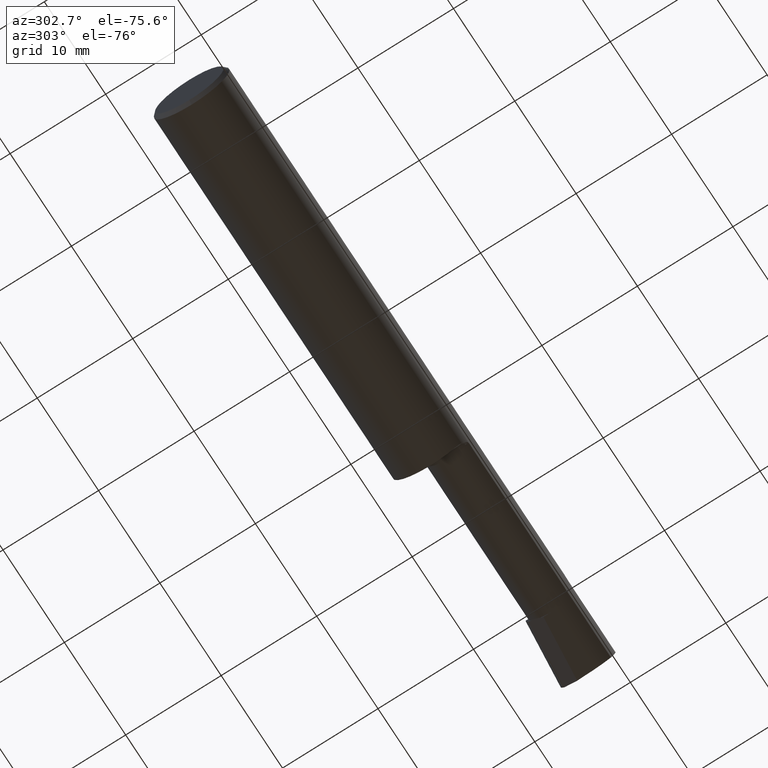
[diagram: clean part render]
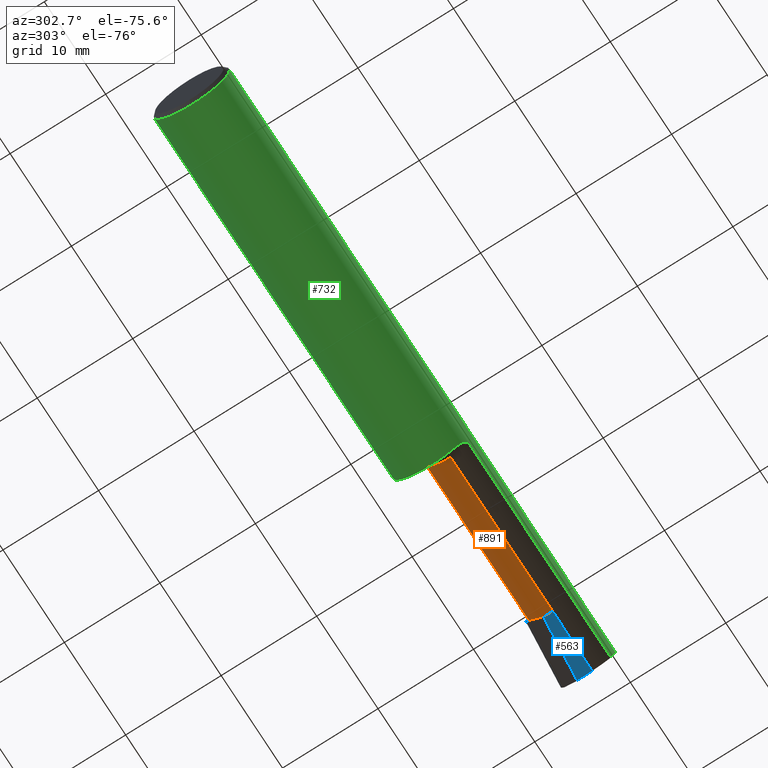
[diagram: same view with three faces highlighted in distinct colors, each labeled with its STEP entity id]
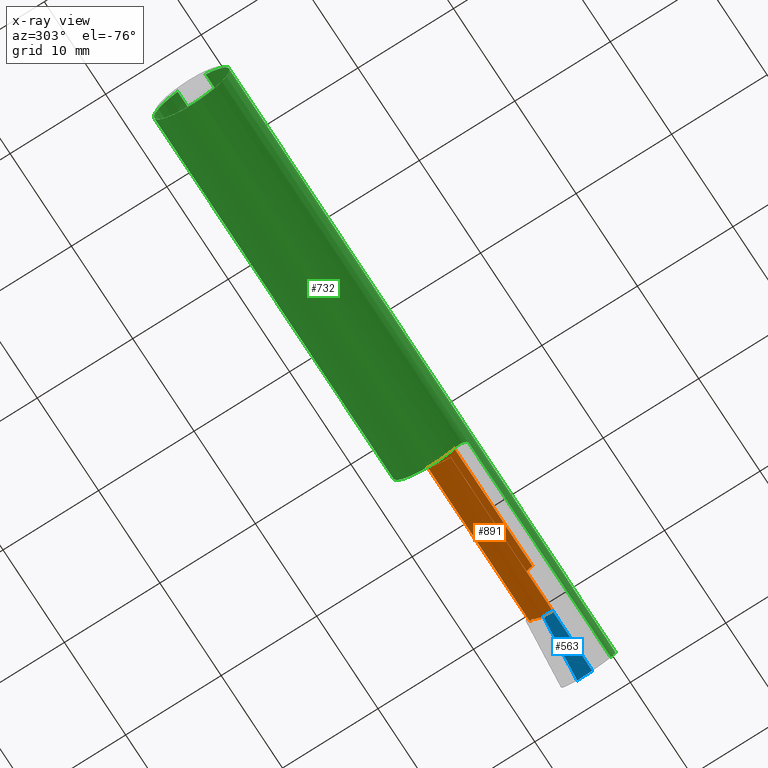
[diagram: x-ray of the same camera — body ghosted, the three highlighted faces saturated]
A machine part, auxiliary view with three faces highlighted in distinct colors.
The next image is the same camera in x-ray (body ghosted, the three faces saturated) — at least one of them is partly hidden behind the body in this view.
Their STEP definitions:

[orange] entity #891 — the highlighted cylindrical surface (edge-blend (fillet) strip) has radius 2.54 mm, axis along (-1, -0, -0).
#2 = DIRECTION ( 'NONE',  ( 0.000000000000000000, 0.000000000000000000, 1.000000000000000000 ) ) ;
#7 = CARTESIAN_POINT ( 'NONE',  ( 39.37000000000000455, -1.678939999999999433, 2.540000000000000036 ) ) ;
#20 = CARTESIAN_POINT ( 'NONE',  ( 56.52208028681336316, 0.5329470779028453453, -1.248661505215251433 ) ) ;
#39 = CIRCLE ( 'NONE', #1111, 2.540000000000000036 ) ;
#44 = ORIENTED_EDGE ( 'NONE', *, *, #56, .T. ) ;
#49 = AXIS2_PLACEMENT_3D ( 'NONE', #996, #1016, #135 ) ;
#51 = AXIS2_PLACEMENT_3D ( 'NONE', #581, #484, #2 ) ;
#56 = EDGE_CURVE ( 'NONE', #288, #638, #652, .T. ) ;
#76 = DIRECTION ( 'NONE',  ( -1.000000000000000000, -0.000000000000000000, -0.000000000000000000 ) ) ;
#83 = DIRECTION ( 'NONE',  ( 0.000000000000000000, 0.000000000000000000, 1.000000000000000000 ) ) ;
#94 = VERTEX_POINT ( 'NONE', #1227 ) ;
#115 = CARTESIAN_POINT ( 'NONE',  ( 39.37000000000000455, 0.8610600000000002696, -8.673617379884035472E-16 ) ) ;
#126 = EDGE_CURVE ( 'NONE', #742, #896, #39, .T. ) ;
#135 = DIRECTION ( 'NONE',  ( 0.000000000000000000, 0.000000000000000000, 1.000000000000000000 ) ) ;
#172 = CARTESIAN_POINT ( 'NONE',  ( 40.00499999999999545, -1.678939999999999433, 0.000000000000000000 ) ) ;
#178 = CARTESIAN_POINT ( 'NONE',  ( 56.64199999999999591, -1.678939999999999433, 0.000000000000000000 ) ) ;
#188 = ORIENTED_EDGE ( 'NONE', *, *, #126, .T. ) ;
#193 = ORIENTED_EDGE ( 'NONE', *, *, #407, .T. ) ;
#208 = CARTESIAN_POINT ( 'NONE',  ( 56.64199999999999591, -1.678939999999999433, -2.540000000000000480 ) ) ;
#233 = CARTESIAN_POINT ( 'NONE',  ( 56.52208028681336316, 0.5329470779028453453, -1.248661505215251433 ) ) ;
#267 = DIRECTION ( 'NONE',  ( 0.000000000000000000, 0.000000000000000000, -1.000000000000000000 ) ) ;
#275 = EDGE_CURVE ( 'NONE', #94, #451, #872, .T. ) ;
#288 = VERTEX_POINT ( 'NONE', #985 ) ;
#289 = CARTESIAN_POINT ( 'NONE',  ( 53.34253999999997831, -0.1922219241183829586, 2.540000000000000036 ) ) ;
#339 = EDGE_CURVE ( 'NONE', #1019, #465, #787, .T. ) ;
#345 =( BOUNDED_CURVE ( )  B_SPLINE_CURVE ( 3, ( #842, #1224, #460, #862 ),
 .UNSPECIFIED., .F., .F. ) 
 B_SPLINE_CURVE_WITH_KNOTS ( ( 4, 4 ),
 ( 4.479557257772968981, 4.982985725396998689 ),
 .UNSPECIFIED. ) 
 CURVE ( )  GEOMETRIC_REPRESENTATION_ITEM ( )  RATIONAL_B_SPLINE_CURVE ( ( 1.000000000000000000, 0.9789912600431243117, 0.9789912600431243117, 1.000000000000000000 ) ) 
 REPRESENTATION_ITEM ( '' )  );
#361 = CARTESIAN_POINT ( 'NONE',  ( 56.64199999999999591, -0.3352786765604210406, -2.155498607722260207 ) ) ;
#400 = ORIENTED_EDGE ( 'NONE', *, *, #827, .F. ) ;
#407 = EDGE_CURVE ( 'NONE', #896, #902, #699, .T. ) ;
#438 = CIRCLE ( 'NONE', #765, 2.540000000000000036 ) ;
#442 = EDGE_LOOP ( 'NONE', ( #188, #193, #483, #1216, #470, #44, #646, #982, #1010, #503, #400 ) ) ;
#444 =( BOUNDED_CURVE ( )  B_SPLINE_CURVE ( 3, ( #866, #1158, #289, #876 ),
 .UNSPECIFIED., .F., .T. ) 
 B_SPLINE_CURVE_WITH_KNOTS ( ( 4, 4 ),
 ( 4.713388980551348695, 6.283185307179586232 ),
 .UNSPECIFIED. ) 
 CURVE ( )  GEOMETRIC_REPRESENTATION_ITEM ( )  RATIONAL_B_SPLINE_CURVE ( ( 1.000000000000000000, 0.8049734974886378902, 0.8049734974886378902, 1.000000000000000000 ) ) 
 REPRESENTATION_ITEM ( '' )  );
#447 = CARTESIAN_POINT ( 'NONE',  ( 56.64199999999999591, 0.8610600000000002696, -8.673617379884035472E-16 ) ) ;
#451 = VERTEX_POINT ( 'NONE', #886 ) ;
#460 = CARTESIAN_POINT ( 'NONE',  ( 56.54978564970318189, 0.3211662971372793440, -1.623811351964774552 ) ) ;
#465 = VERTEX_POINT ( 'NONE', #1075 ) ;
#470 = ORIENTED_EDGE ( 'NONE', *, *, #1149, .F. ) ;
#483 = ORIENTED_EDGE ( 'NONE', *, *, #660, .T. ) ;
#484 = DIRECTION ( 'NONE',  ( -1.000000000000000000, -0.000000000000000000, -0.000000000000000000 ) ) ;
#488 = CARTESIAN_POINT ( 'NONE',  ( 56.64199999999999591, 0.5162690332466144394, -1.277754788820009146 ) ) ;
#494 = CARTESIAN_POINT ( 'NONE',  ( 56.60650789487561951, -0.3438671563499254846, -2.160828660988210803 ) ) ;
#503 = ORIENTED_EDGE ( 'NONE', *, *, #731, .F. ) ;
#522 = CARTESIAN_POINT ( 'NONE',  ( 56.64199999999999591, -0.3352786765604210406, -2.155498607722260207 ) ) ;
#524 = VECTOR ( 'NONE', #1069, 1000.000000000000000 ) ;
#568 = DIRECTION ( 'NONE',  ( -1.000000000000000000, -0.000000000000000000, -0.000000000000000000 ) ) ;
#581 = CARTESIAN_POINT ( 'NONE',  ( 56.64199999999999591, -1.678939999999999433, 0.000000000000000000 ) ) ;
#594 = CIRCLE ( 'NONE', #51, 2.540000000000000036 ) ;
#638 = VERTEX_POINT ( 'NONE', #1100 ) ;
#646 = ORIENTED_EDGE ( 'NONE', *, *, #792, .T. ) ;
#652 = CIRCLE ( 'NONE', #49, 2.540000000000000036 ) ;
#660 = EDGE_CURVE ( 'NONE', #902, #451, #438, .T. ) ;
#680 = CARTESIAN_POINT ( 'NONE',  ( 56.60650789487561951, -0.3438671563499254846, -2.160828660988210803 ) ) ;
#684 = VERTEX_POINT ( 'NONE', #447 ) ;
#687 = CARTESIAN_POINT ( 'NONE',  ( 39.37000000000000455, -1.678939999999999433, 0.000000000000000000 ) ) ;
#699 = LINE ( 'NONE', #781, #524 ) ;
#714 = DIRECTION ( 'NONE',  ( -1.000000000000000000, -0.000000000000000000, -0.000000000000000000 ) ) ;
#731 = EDGE_CURVE ( 'NONE', #1157, #1019, #345, .T. ) ;
#742 = VERTEX_POINT ( 'NONE', #361 ) ;
#765 = AXIS2_PLACEMENT_3D ( 'NONE', #172, #931, #267 ) ;
#781 = CARTESIAN_POINT ( 'NONE',  ( 39.37000000000000455, -1.678939999999999211, -2.540000000000000036 ) ) ;
#787 =( BOUNDED_CURVE ( )  B_SPLINE_CURVE ( 3, ( #20, #1160, #975, #488 ),
 .UNSPECIFIED., .F., .F. ) 
 B_SPLINE_CURVE_WITH_KNOTS ( ( 4, 4 ),
 ( 2.885266815324716294, 2.898469550304956677 ),
 .UNSPECIFIED. ) 
 CURVE ( )  GEOMETRIC_REPRESENTATION_ITEM ( )  RATIONAL_B_SPLINE_CURVE ( ( 1.000000000000000000, 0.9999854740351713511, 0.9999854740351713511, 1.000000000000000000 ) ) 
 REPRESENTATION_ITEM ( '' )  );
#792 = EDGE_CURVE ( 'NONE', #638, #684, #1062, .T. ) ;
#827 = EDGE_CURVE ( 'NONE', #742, #1157, #998, .T. ) ;
#842 = CARTESIAN_POINT ( 'NONE',  ( 56.60650789487561951, -0.3438671563499254846, -2.160828660988210803 ) ) ;
#862 = CARTESIAN_POINT ( 'NONE',  ( 56.52208028681336316, 0.5329470779028453453, -1.248661505215251433 ) ) ;
#866 = CARTESIAN_POINT ( 'NONE',  ( 55.88000000000000256, 0.8610587299996853572, 0.002539999999979711265 ) ) ;
#869 = CARTESIAN_POINT ( 'NONE',  ( 56.63026341365512906, -0.3381379660845326152, -2.157280987322181875 ) ) ;
#872 = LINE ( 'NONE', #7, #1195 ) ;
#876 = CARTESIAN_POINT ( 'NONE',  ( 53.34253999999998541, -1.678939999999999433, 2.540000000000000036 ) ) ;
#886 = CARTESIAN_POINT ( 'NONE',  ( 40.00499999999999545, -1.678939999999999433, 2.540000000000000036 ) ) ;
#891 = ADVANCED_FACE ( 'NONE', ( #967 ), #1000, .T. ) ;
#896 = VERTEX_POINT ( 'NONE', #208 ) ;
#900 = CARTESIAN_POINT ( 'NONE',  ( 40.00499999999999545, -1.678939999999999211, -2.540000000000000036 ) ) ;
#902 = VERTEX_POINT ( 'NONE', #900 ) ;
#903 = CARTESIAN_POINT ( 'NONE',  ( 56.61843269633379094, -0.3410007964591647012, -2.159057674088892487 ) ) ;
#931 = DIRECTION ( 'NONE',  ( 1.000000000000000000, 0.000000000000000000, 0.000000000000000000 ) ) ;
#936 = AXIS2_PLACEMENT_3D ( 'NONE', #687, #714, #1074 ) ;
#967 = FACE_OUTER_BOUND ( 'NONE', #442, .T. ) ;
#975 = CARTESIAN_POINT ( 'NONE',  ( 56.60306167935597443, 0.5218923600378164718, -1.268093797621264951 ) ) ;
#982 = ORIENTED_EDGE ( 'NONE', *, *, #1091, .T. ) ;
#985 = CARTESIAN_POINT ( 'NONE',  ( 55.88000000000000256, 0.8610587299996853572, 0.002539999999979711265 ) ) ;
#996 = CARTESIAN_POINT ( 'NONE',  ( 55.88000000000000256, -1.678939999999999433, 0.000000000000000000 ) ) ;
#998 =( BOUNDED_CURVE ( )  B_SPLINE_CURVE ( 3, ( #522, #869, #903, #494 ),
 .UNSPECIFIED., .F., .F. ) 
 B_SPLINE_CURVE_WITH_KNOTS ( ( 4, 4 ),
 ( 3.384715756874629555, 3.388695282948743781 ),
 .UNSPECIFIED. ) 
 CURVE ( )  GEOMETRIC_REPRESENTATION_ITEM ( )  RATIONAL_B_SPLINE_CURVE ( ( 1.000000000000000000, 0.9999986802814542219, 0.9999986802814542219, 1.000000000000000000 ) ) 
 REPRESENTATION_ITEM ( '' )  );
#1000 = CYLINDRICAL_SURFACE ( 'NONE', #936, 2.540000000000000036 ) ;
#1010 = ORIENTED_EDGE ( 'NONE', *, *, #339, .F. ) ;
#1016 = DIRECTION ( 'NONE',  ( -1.000000000000000000, -0.000000000000000000, -0.000000000000000000 ) ) ;
#1019 = VERTEX_POINT ( 'NONE', #233 ) ;
#1048 = VECTOR ( 'NONE', #1068, 1000.000000000000000 ) ;
#1062 = LINE ( 'NONE', #115, #1048 ) ;
#1068 = DIRECTION ( 'NONE',  ( 1.000000000000000000, 0.000000000000000000, 0.000000000000000000 ) ) ;
#1069 = DIRECTION ( 'NONE',  ( -1.000000000000000000, -0.000000000000000000, -0.000000000000000000 ) ) ;
#1074 = DIRECTION ( 'NONE',  ( 0.000000000000000000, 0.000000000000000000, 1.000000000000000000 ) ) ;
#1075 = CARTESIAN_POINT ( 'NONE',  ( 56.64199999999999591, 0.5162690332466144394, -1.277754788820009146 ) ) ;
#1091 = EDGE_CURVE ( 'NONE', #684, #465, #594, .T. ) ;
#1100 = CARTESIAN_POINT ( 'NONE',  ( 55.88000000000000256, 0.8610600000000002696, -8.673617379884035472E-16 ) ) ;
#1111 = AXIS2_PLACEMENT_3D ( 'NONE', #178, #76, #83 ) ;
#1149 = EDGE_CURVE ( 'NONE', #288, #94, #444, .T. ) ;
#1157 = VERTEX_POINT ( 'NONE', #680 ) ;
#1158 = CARTESIAN_POINT ( 'NONE',  ( 54.39328266747760665, 0.8595720119238138279, 1.489257332522372135 ) ) ;
#1160 = CARTESIAN_POINT ( 'NONE',  ( 56.56308786096882812, 0.5274517890126292352, -1.258395895548295673 ) ) ;
#1195 = VECTOR ( 'NONE', #568, 1000.000000000000000 ) ;
#1216 = ORIENTED_EDGE ( 'NONE', *, *, #275, .F. ) ;
#1224 = CARTESIAN_POINT ( 'NONE',  ( 56.57853211268948712, 0.02262286437495201682, -1.934391978167292914 ) ) ;
#1227 = CARTESIAN_POINT ( 'NONE',  ( 53.34253999999998541, -1.678939999999999433, 2.540000000000000036 ) ) ;

[blue] entity #563 — the highlighted planar face has unit normal (0, 0, 1).
#23 = LINE ( 'NONE', #983, #1004 ) ;
#42 = DIRECTION ( 'NONE',  ( -1.000000000000000000, -0.000000000000000000, -0.000000000000000000 ) ) ;
#65 = LINE ( 'NONE', #1033, #788 ) ;
#122 = CARTESIAN_POINT ( 'NONE',  ( 63.09565101948187760, -1.678939999999999433, -2.540000000000000480 ) ) ;
#208 = CARTESIAN_POINT ( 'NONE',  ( 56.64199999999999591, -1.678939999999999433, -2.540000000000000480 ) ) ;
#227 = CARTESIAN_POINT ( 'NONE',  ( 63.50000000000004263, -1.678939999999999433, -2.540000000000000480 ) ) ;
#280 = AXIS2_PLACEMENT_3D ( 'NONE', #630, #541, #1093 ) ;
#297 = CARTESIAN_POINT ( 'NONE',  ( 56.64199999999999591, -0.7083046927632086209, -2.540000000000000480 ) ) ;
#301 = DIRECTION ( 'NONE',  ( 0.000000000000000000, 1.000000000000000000, 0.000000000000000000 ) ) ;
#385 = LINE ( 'NONE', #227, #505 ) ;
#405 = VERTEX_POINT ( 'NONE', #297 ) ;
#419 = DIRECTION ( 'NONE',  ( 0.9953961983671787417, 0.09584575252022448089, -6.700811952580481028E-18 ) ) ;
#433 = LINE ( 'NONE', #530, #703 ) ;
#505 = VECTOR ( 'NONE', #42, 1000.000000000000000 ) ;
#530 = CARTESIAN_POINT ( 'NONE',  ( 63.34439663811665611, -0.06293729983656952409, -2.540000000000000480 ) ) ;
#541 = DIRECTION ( 'NONE',  ( 0.000000000000000000, 0.000000000000000000, 1.000000000000000000 ) ) ;
#563 = ADVANCED_FACE ( 'NONE', ( #716 ), #705, .F. ) ;
#602 = EDGE_CURVE ( 'NONE', #405, #730, #433, .T. ) ;
#630 = CARTESIAN_POINT ( 'NONE',  ( 63.50000000000004263, -1.678939999999999433, -2.540000000000000480 ) ) ;
#659 = EDGE_CURVE ( 'NONE', #838, #730, #65, .T. ) ;
#703 = VECTOR ( 'NONE', #419, 1000.000000000000000 ) ;
#705 = PLANE ( 'NONE',  #280 ) ;
#716 = FACE_OUTER_BOUND ( 'NONE', #719, .T. ) ;
#719 = EDGE_LOOP ( 'NONE', ( #978, #789, #798, #1222 ) ) ;
#730 = VERTEX_POINT ( 'NONE', #1233 ) ;
#788 = VECTOR ( 'NONE', #837, 1000.000000000000114 ) ;
#789 = ORIENTED_EDGE ( 'NONE', *, *, #602, .T. ) ;
#798 = ORIENTED_EDGE ( 'NONE', *, *, #659, .F. ) ;
#837 = DIRECTION ( 'NONE',  ( 0.02637339639456100920, 0.9996521614854915194, -0.000000000000000000 ) ) ;
#838 = VERTEX_POINT ( 'NONE', #122 ) ;
#859 = EDGE_CURVE ( 'NONE', #838, #896, #385, .T. ) ;
#896 = VERTEX_POINT ( 'NONE', #208 ) ;
#978 = ORIENTED_EDGE ( 'NONE', *, *, #1238, .T. ) ;
#983 = CARTESIAN_POINT ( 'NONE',  ( 56.64199999999999591, -1.678939999999999433, -2.540000000000000480 ) ) ;
#1004 = VECTOR ( 'NONE', #301, 1000.000000000000000 ) ;
#1033 = CARTESIAN_POINT ( 'NONE',  ( 63.18735456327720357, 1.796973545582666087, -2.540000000000000480 ) ) ;
#1093 = DIRECTION ( 'NONE',  ( 1.000000000000000000, 0.000000000000000000, -0.000000000000000000 ) ) ;
#1222 = ORIENTED_EDGE ( 'NONE', *, *, #859, .T. ) ;
#1233 = CARTESIAN_POINT ( 'NONE',  ( 63.13776040016294644, -0.08283410651225252275, -2.540000000000001812 ) ) ;
#1238 = EDGE_CURVE ( 'NONE', #896, #405, #23, .T. ) ;

[green] entity #732 — the highlighted cylindrical surface (partial cylindrical patch) has radius 3.9649 mm, axis along (-1, -0, -0).
#13 = CARTESIAN_POINT ( 'NONE',  ( 54.22074505735906769, -3.599887049924353821, 1.661794942640917094 ) ) ;
#17 = CARTESIAN_POINT ( 'NONE',  ( 39.37000000000000455, -2.519138184568832983, -3.061811883615197072 ) ) ;
#18 = CIRCLE ( 'NONE', #612, 3.964939999999999465 ) ;
#19 = DIRECTION ( 'NONE',  ( 1.000000000000000000, -0.000000000000000000, -0.000000000000000000 ) ) ;
#36 = DIRECTION ( 'NONE',  ( 0.000000000000000000, 0.000000000000000000, -1.000000000000000000 ) ) ;
#48 = CARTESIAN_POINT ( 'NONE',  ( 63.34721324168081225, -3.964939999999998577, -1.734723475976807094E-15 ) ) ;
#58 = CARTESIAN_POINT ( 'NONE',  ( 55.30478309583587304, -3.964570693771735765, 0.5777569041641154035 ) ) ;
#60 = AXIS2_PLACEMENT_3D ( 'NONE', #979, #19, #36 ) ;
#78 = VERTEX_POINT ( 'NONE', #1155 ) ;
#105 = ORIENTED_EDGE ( 'NONE', *, *, #1052, .T. ) ;
#109 = DIRECTION ( 'NONE',  ( 0.000000000000000000, 0.000000000000000000, -1.000000000000000000 ) ) ;
#114 = EDGE_CURVE ( 'NONE', #300, #927, #209, .T. ) ;
#131 = VERTEX_POINT ( 'NONE', #256 ) ;
#134 = DIRECTION ( 'NONE',  ( -1.000000000000000000, -0.000000000000000000, -0.000000000000000000 ) ) ;
#142 = CARTESIAN_POINT ( 'NONE',  ( 63.15280151554064503, -3.599887049924355598, -1.661794942640913542 ) ) ;
#150 = CARTESIAN_POINT ( 'NONE',  ( 39.92209333977406516, -3.593173028997538765, 1.676424154804801558 ) ) ;
#160 = ORIENTED_EDGE ( 'NONE', *, *, #783, .T. ) ;
#168 = ORIENTED_EDGE ( 'NONE', *, *, #959, .T. ) ;
#170 = CARTESIAN_POINT ( 'NONE',  ( 39.70013817098802633, -3.482913605042309069, 1.896197172601131520 ) ) ;
#180 = AXIS2_PLACEMENT_3D ( 'NONE', #744, #474, #1123 ) ;
#190 = CARTESIAN_POINT ( 'NONE',  ( 39.82331072668533523, -3.560555847044618361, -1.744768704123047298 ) ) ;
#195 = EDGE_CURVE ( 'NONE', #528, #300, #644, .T. ) ;
#209 = CIRCLE ( 'NONE', #403, 3.964939999999999465 ) ;
#215 = DIRECTION ( 'NONE',  ( 1.000000000000000000, 0.000000000000000000, 0.000000000000000000 ) ) ;
#222 = VERTEX_POINT ( 'NONE', #573 ) ;
#241 = CARTESIAN_POINT ( 'NONE',  ( 39.85257322604091001, -3.573254725572614365, 1.718470549442531636 ) ) ;
#246 = ORIENTED_EDGE ( 'NONE', *, *, #836, .T. ) ;
#248 = DIRECTION ( 'NONE',  ( 1.000000000000000000, 0.000000000000000000, 0.000000000000000000 ) ) ;
#254 = CARTESIAN_POINT ( 'NONE',  ( 63.50000000000000000, 1.462034237629201039, 3.685539999999999150 ) ) ;
#256 = CARTESIAN_POINT ( 'NONE',  ( 39.37000000000000455, 1.462034237629201039, 3.685539999999999150 ) ) ;
#284 = DIRECTION ( 'NONE',  ( 0.000000000000000000, 0.000000000000000000, 1.000000000000000000 ) ) ;
#296 = CARTESIAN_POINT ( 'NONE',  ( 39.92223186210839714, -3.593202679785876708, -1.676360523546626125 ) ) ;
#300 = VERTEX_POINT ( 'NONE', #880 ) ;
#304 = CARTESIAN_POINT ( 'NONE',  ( 40.00499999999999545, -3.599887049924355154, -1.661794942640913098 ) ) ;
#315 = CARTESIAN_POINT ( 'NONE',  ( 40.00499999999999545, -3.599887049924355154, 1.661794942640912653 ) ) ;
#318 = ORIENTED_EDGE ( 'NONE', *, *, #871, .F. ) ;
#321 = DIRECTION ( 'NONE',  ( 0.000000000000000000, 0.000000000000000000, -1.000000000000000000 ) ) ;
#335 = DIRECTION ( 'NONE',  ( -1.000000000000000000, -0.000000000000000000, -0.000000000000000000 ) ) ;
#336 = CIRCLE ( 'NONE', #60, 3.964939999999999465 ) ;
#343 = CARTESIAN_POINT ( 'NONE',  ( 39.53726499476741196, -3.286836667701075854, 2.223289014318798440 ) ) ;
#349 = CARTESIAN_POINT ( 'NONE',  ( 39.59039366075621302, -3.372877125526300812, 2.089606631779968637 ) ) ;
#353 = VERTEX_POINT ( 'NONE', #315 ) ;
#355 = CYLINDRICAL_SURFACE ( 'NONE', #180, 3.964939999999999465 ) ;
#366 = ORIENTED_EDGE ( 'NONE', *, *, #966, .T. ) ;
#374 = VERTEX_POINT ( 'NONE', #13 ) ;
#376 = CARTESIAN_POINT ( 'NONE',  ( 39.37000000000000455, -2.776463605467542894, -2.850094665743278632 ) ) ;
#377 = DIRECTION ( 'NONE',  ( -1.000000000000000000, -0.000000000000000000, -0.000000000000000000 ) ) ;
#381 = ORIENTED_EDGE ( 'NONE', *, *, #686, .T. ) ;
#403 = AXIS2_PLACEMENT_3D ( 'NONE', #949, #377, #284 ) ;
#422 = VERTEX_POINT ( 'NONE', #688 ) ;
#430 = CARTESIAN_POINT ( 'NONE',  ( 63.50000000000000000, -1.462034237629201039, 3.685539999999999150 ) ) ;
#437 = CARTESIAN_POINT ( 'NONE',  ( 54.74300171423059425, -3.840973355998292149, 1.139538285769383430 ) ) ;
#439 = B_SPLINE_CURVE_WITH_KNOTS ( 'NONE', 3,
 ( #567, #376, #764, #1042, #1154, #671, #1055, #190, #879, #296, #960, #591 ),
 .UNSPECIFIED., .F., .F.,
 ( 4, 2, 2, 2, 2, 4 ),
 ( 0.000000000000000000, 0.0009854161110805813913, 0.001478124166620874147, 0.001724478194391020633, 0.001847655208276093768, 0.001970832222161166686 ),
 .UNSPECIFIED. ) ;
#467 = FACE_OUTER_BOUND ( 'NONE', #1176, .T. ) ;
#472 = EDGE_CURVE ( 'NONE', #353, #374, #500, .T. ) ;
#474 = DIRECTION ( 'NONE',  ( -1.000000000000000000, -0.000000000000000000, -0.000000000000000000 ) ) ;
#477 = ORIENTED_EDGE ( 'NONE', *, *, #1041, .T. ) ;
#482 = AXIS2_PLACEMENT_3D ( 'NONE', #1049, #553, #926 ) ;
#486 =( BOUNDED_CURVE ( )  B_SPLINE_CURVE ( 3, ( #142, #529, #910, #48 ),
 .UNSPECIFIED., .F., .T. ) 
 B_SPLINE_CURVE_WITH_KNOTS ( ( 4, 4 ),
 ( 0.9266671109708576326, 1.359145557743733468 ),
 .UNSPECIFIED. ) 
 CURVE ( )  GEOMETRIC_REPRESENTATION_ITEM ( )  RATIONAL_B_SPLINE_CURVE ( ( 1.000000000000000000, 0.9844741726620815925, 0.9844741726620815925, 1.000000000000000000 ) ) 
 REPRESENTATION_ITEM ( '' )  );
#500 = LINE ( 'NONE', #1082, #622 ) ;
#518 = EDGE_CURVE ( 'NONE', #78, #696, #1129, .T. ) ;
#528 = VERTEX_POINT ( 'NONE', #635 ) ;
#529 = CARTESIAN_POINT ( 'NONE',  ( 63.21065313572310629, -3.841336638864745190, -1.138751319066781731 ) ) ;
#534 = CARTESIAN_POINT ( 'NONE',  ( 39.36999999999999744, -2.647704699856519905, 2.956032420268233984 ) ) ;
#542 = VECTOR ( 'NONE', #856, 1000.000000000000000 ) ;
#545 = CARTESIAN_POINT ( 'NONE',  ( 39.82245480245961033, -3.560155007699747021, 1.745585502201547179 ) ) ;
#553 = DIRECTION ( 'NONE',  ( 1.000000000000000000, -0.000000000000000000, -0.000000000000000000 ) ) ;
#567 = CARTESIAN_POINT ( 'NONE',  ( 39.37000000000000455, -2.519138184568832983, -3.061811883615197072 ) ) ;
#570 = ORIENTED_EDGE ( 'NONE', *, *, #518, .F. ) ;
#573 = CARTESIAN_POINT ( 'NONE',  ( 0.3809999999999924558, -1.462034237629201039, 3.685539999999999150 ) ) ;
#590 = EDGE_CURVE ( 'NONE', #713, #816, #921, .T. ) ;
#591 = CARTESIAN_POINT ( 'NONE',  ( 40.00499999999999545, -3.599887049924355154, -1.661794942640913098 ) ) ;
#601 = VECTOR ( 'NONE', #134, 1000.000000000000000 ) ;
#612 = AXIS2_PLACEMENT_3D ( 'NONE', #771, #1159, #109 ) ;
#622 = VECTOR ( 'NONE', #215, 1000.000000000000000 ) ;
#626 = CARTESIAN_POINT ( 'NONE',  ( 39.45278457167212594, -3.097160976341655658, 2.480706191382078263 ) ) ;
#634 = CARTESIAN_POINT ( 'NONE',  ( 39.74226220547249966, -3.517214224323105487, 1.831405522215774351 ) ) ;
#635 = CARTESIAN_POINT ( 'NONE',  ( 63.34721324168081225, -3.964939999999998577, -1.734723475976807094E-15 ) ) ;
#639 = CARTESIAN_POINT ( 'NONE',  ( 39.37000000000000455, -2.519138184568832983, 3.061811883615197072 ) ) ;
#644 = LINE ( 'NONE', #1035, #542 ) ;
#648 = CARTESIAN_POINT ( 'NONE',  ( 63.15280151554064503, -3.599887049924355598, -1.661794942640913542 ) ) ;
#657 = VECTOR ( 'NONE', #1031, 1000.000000000000000 ) ;
#663 = ORIENTED_EDGE ( 'NONE', *, *, #114, .T. ) ;
#671 = CARTESIAN_POINT ( 'NONE',  ( 39.70080737346494004, -3.483507757590341480, -1.895116055831528090 ) ) ;
#686 = EDGE_CURVE ( 'NONE', #422, #972, #1210, .T. ) ;
#688 = CARTESIAN_POINT ( 'NONE',  ( 0.3809999999999924558, 0.000000000000000000, -3.964939999999999465 ) ) ;
#696 = VERTEX_POINT ( 'NONE', #1027 ) ;
#713 = VERTEX_POINT ( 'NONE', #648 ) ;
#720 = CARTESIAN_POINT ( 'NONE',  ( 40.00499999999999545, -3.599887049924355154, 1.661794942640912653 ) ) ;
#725 = ORIENTED_EDGE ( 'NONE', *, *, #590, .F. ) ;
#728 = CARTESIAN_POINT ( 'NONE',  ( 0.3809999999999924558, 1.462034237629201039, 3.685539999999999150 ) ) ;
#732 = ADVANCED_FACE ( 'NONE', ( #467 ), #355, .T. ) ;
#744 = CARTESIAN_POINT ( 'NONE',  ( 63.50000000000000000, 0.000000000000000000, 0.000000000000000000 ) ) ;
#748 = LINE ( 'NONE', #430, #885 ) ;
#764 = CARTESIAN_POINT ( 'NONE',  ( 39.40986463659906747, -3.000605534502819083, -2.611659286570839011 ) ) ;
#771 = CARTESIAN_POINT ( 'NONE',  ( 39.37000000000000455, 0.000000000000000000, 0.000000000000000000 ) ) ;
#783 = EDGE_CURVE ( 'NONE', #1199, #816, #439, .T. ) ;
#804 = B_SPLINE_CURVE_WITH_KNOTS ( 'NONE', 3,
 ( #720, #1014, #150, #241, #545, #634, #170, #349, #343, #626, #833, #841, #534, #639 ),
 .UNSPECIFIED., .F., .F.,
 ( 4, 2, 2, 2, 2, 2, 4 ),
 ( 0.000000000000000000, 0.0001252016961403244993, 0.0002504033922806489986, 0.0005008067845612979973, 0.001001613569122605752, 0.001502420353683913724, 0.002003227138245221479 ),
 .UNSPECIFIED. ) ;
#808 = CARTESIAN_POINT ( 'NONE',  ( 39.37000000000000455, 0.000000000000000000, 0.000000000000000000 ) ) ;
#816 = VERTEX_POINT ( 'NONE', #304 ) ;
#821 = CARTESIAN_POINT ( 'NONE',  ( 55.88000000000000256, -3.964939186418879213, 0.002539999999978843903 ) ) ;
#833 = CARTESIAN_POINT ( 'NONE',  ( 39.42234523350258968, -2.993776095290414663, 2.604749827684864627 ) ) ;
#836 = EDGE_CURVE ( 'NONE', #222, #422, #336, .T. ) ;
#841 = CARTESIAN_POINT ( 'NONE',  ( 39.38086488926297335, -2.769437744535205415, 2.842117441750147577 ) ) ;
#846 = LINE ( 'NONE', #254, #657 ) ;
#856 = DIRECTION ( 'NONE',  ( -1.000000000000000000, -0.000000000000000000, -0.000000000000000000 ) ) ;
#871 = EDGE_CURVE ( 'NONE', #1199, #131, #18, .T. ) ;
#879 = CARTESIAN_POINT ( 'NONE',  ( 39.85266131581566640, -3.573289969088939255, -1.718397189166197769 ) ) ;
#880 = CARTESIAN_POINT ( 'NONE',  ( 55.88000000000000256, -3.964939999999999465, -8.673617379884035472E-16 ) ) ;
#885 = VECTOR ( 'NONE', #335, 1000.000000000000000 ) ;
#904 = AXIS2_PLACEMENT_3D ( 'NONE', #808, #248, #321 ) ;
#910 = CARTESIAN_POINT ( 'NONE',  ( 63.27647904615622565, -3.964939999999999465, -0.5760837926561040989 ) ) ;
#916 = CARTESIAN_POINT ( 'NONE',  ( 55.88000000000000256, -3.964939186418879213, 0.002539999999978843903 ) ) ;
#919 =( BOUNDED_CURVE ( )  B_SPLINE_CURVE ( 3, ( #916, #58, #437, #1214 ),
 .UNSPECIFIED., .F., .T. ) 
 B_SPLINE_CURVE_WITH_KNOTS ( ( 4, 4 ),
 ( 4.713029595418891660, 5.144867427157565842 ),
 .UNSPECIFIED. ) 
 CURVE ( )  GEOMETRIC_REPRESENTATION_ITEM ( )  RATIONAL_B_SPLINE_CURVE ( ( 1.000000000000000000, 0.9845199556095911575, 0.9845199556095911575, 1.000000000000000000 ) ) 
 REPRESENTATION_ITEM ( '' )  );
#920 = EDGE_CURVE ( 'NONE', #972, #131, #846, .T. ) ;
#921 = LINE ( 'NONE', #995, #601 ) ;
#926 = DIRECTION ( 'NONE',  ( 0.000000000000000000, 0.000000000000000000, -1.000000000000000000 ) ) ;
#927 = VERTEX_POINT ( 'NONE', #821 ) ;
#934 = ORIENTED_EDGE ( 'NONE', *, *, #920, .T. ) ;
#949 = CARTESIAN_POINT ( 'NONE',  ( 55.88000000000000256, 0.000000000000000000, 0.000000000000000000 ) ) ;
#959 = EDGE_CURVE ( 'NONE', #353, #696, #804, .T. ) ;
#960 = CARTESIAN_POINT ( 'NONE',  ( 39.96273214518529926, -3.599887049924844984, -1.661794942640280270 ) ) ;
#966 = EDGE_CURVE ( 'NONE', #927, #374, #919, .T. ) ;
#972 = VERTEX_POINT ( 'NONE', #728 ) ;
#979 = CARTESIAN_POINT ( 'NONE',  ( 0.3809999999999924558, 0.000000000000000000, 0.000000000000000000 ) ) ;
#995 = CARTESIAN_POINT ( 'NONE',  ( 48.00600000000000023, -3.599887049924355154, -1.661794942640913098 ) ) ;
#1014 = CARTESIAN_POINT ( 'NONE',  ( 39.96244100483410477, -3.599887049924354265, 1.661794942640912653 ) ) ;
#1027 = CARTESIAN_POINT ( 'NONE',  ( 39.37000000000000455, -2.519138184568832983, 3.061811883615197072 ) ) ;
#1031 = DIRECTION ( 'NONE',  ( 1.000000000000000000, 0.000000000000000000, 0.000000000000000000 ) ) ;
#1035 = CARTESIAN_POINT ( 'NONE',  ( 63.50000000000000000, -3.964939999999998577, -8.673617379884035472E-16 ) ) ;
#1041 = EDGE_CURVE ( 'NONE', #713, #528, #486, .T. ) ;
#1042 = CARTESIAN_POINT ( 'NONE',  ( 39.53735470549298725, -3.287133544512902628, -2.222929241776083753 ) ) ;
#1049 = CARTESIAN_POINT ( 'NONE',  ( 0.3809999999999924558, 0.000000000000000000, 0.000000000000000000 ) ) ;
#1052 = EDGE_CURVE ( 'NONE', #78, #222, #748, .T. ) ;
#1055 = CARTESIAN_POINT ( 'NONE',  ( 39.74270401922562712, -3.517563494622020670, -1.830738248287719916 ) ) ;
#1082 = CARTESIAN_POINT ( 'NONE',  ( 48.00600000000000023, -3.599887049924355154, 1.661794942640912653 ) ) ;
#1123 = DIRECTION ( 'NONE',  ( 0.000000000000000000, 0.000000000000000000, 1.000000000000000000 ) ) ;
#1129 = CIRCLE ( 'NONE', #904, 3.964939999999999465 ) ;
#1154 = CARTESIAN_POINT ( 'NONE',  ( 39.59048060739426234, -3.373116484278351646, -2.089258773282957726 ) ) ;
#1155 = CARTESIAN_POINT ( 'NONE',  ( 39.37000000000000455, -1.462034237629201483, 3.685539999999999150 ) ) ;
#1159 = DIRECTION ( 'NONE',  ( 1.000000000000000000, 0.000000000000000000, 0.000000000000000000 ) ) ;
#1176 = EDGE_LOOP ( 'NONE', ( #725, #477, #1207, #663, #366, #1202, #168, #570, #105, #246, #381, #934, #318, #160 ) ) ;
#1199 = VERTEX_POINT ( 'NONE', #17 ) ;
#1202 = ORIENTED_EDGE ( 'NONE', *, *, #472, .F. ) ;
#1207 = ORIENTED_EDGE ( 'NONE', *, *, #195, .T. ) ;
#1210 = CIRCLE ( 'NONE', #482, 3.964939999999999465 ) ;
#1214 = CARTESIAN_POINT ( 'NONE',  ( 54.22074505735906769, -3.599887049924353821, 1.661794942640917094 ) ) ;